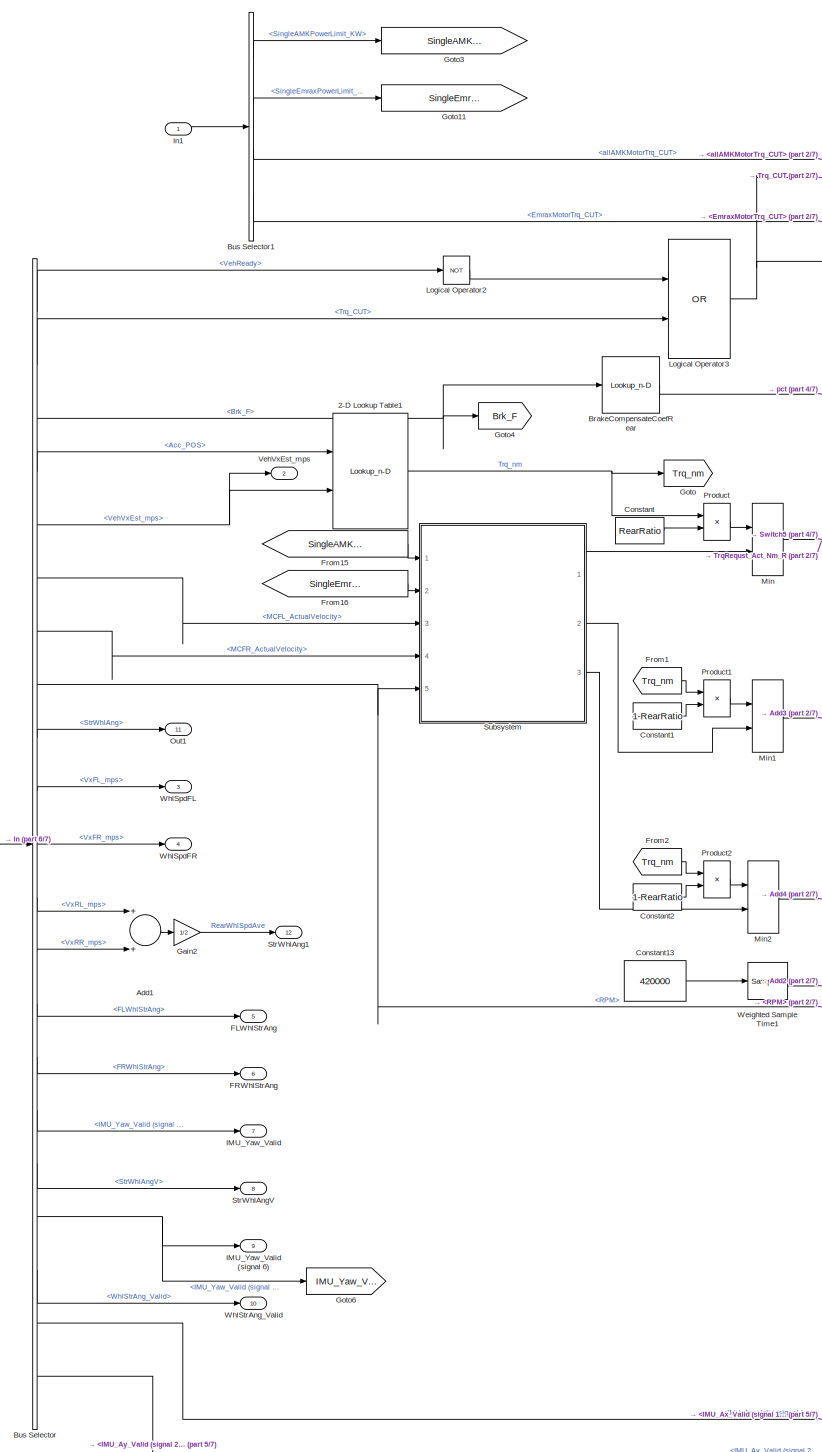
[diagram: root canvas - part 1/7, left side, full height]
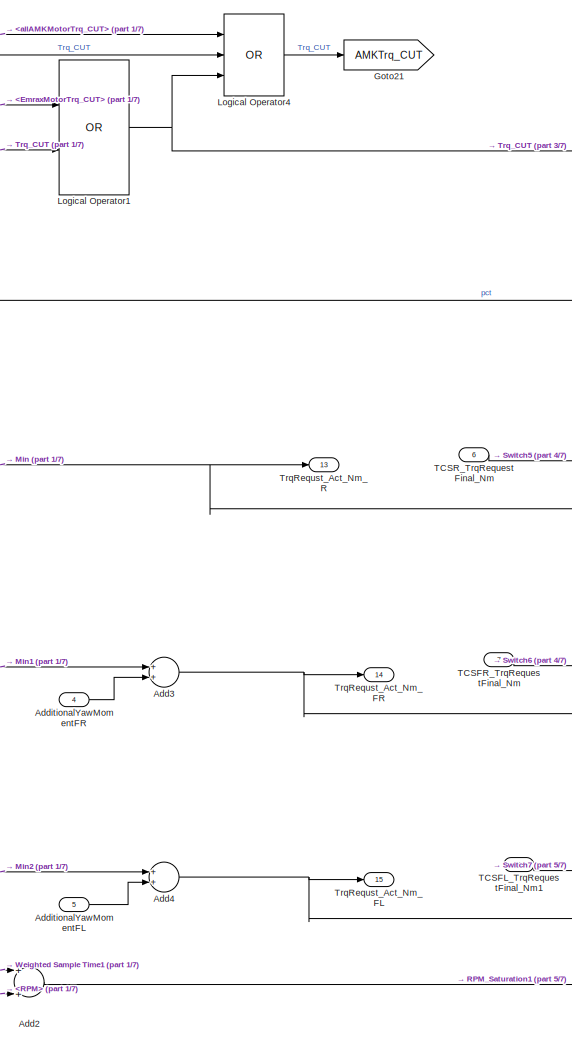
[diagram: root canvas - part 2/7, central region]
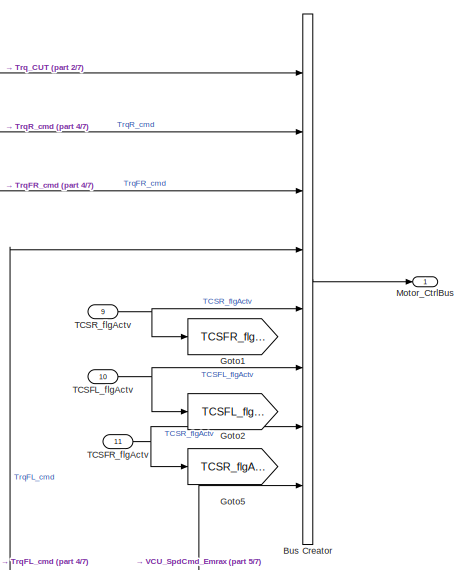
[diagram: root canvas - part 3/7, top right region]
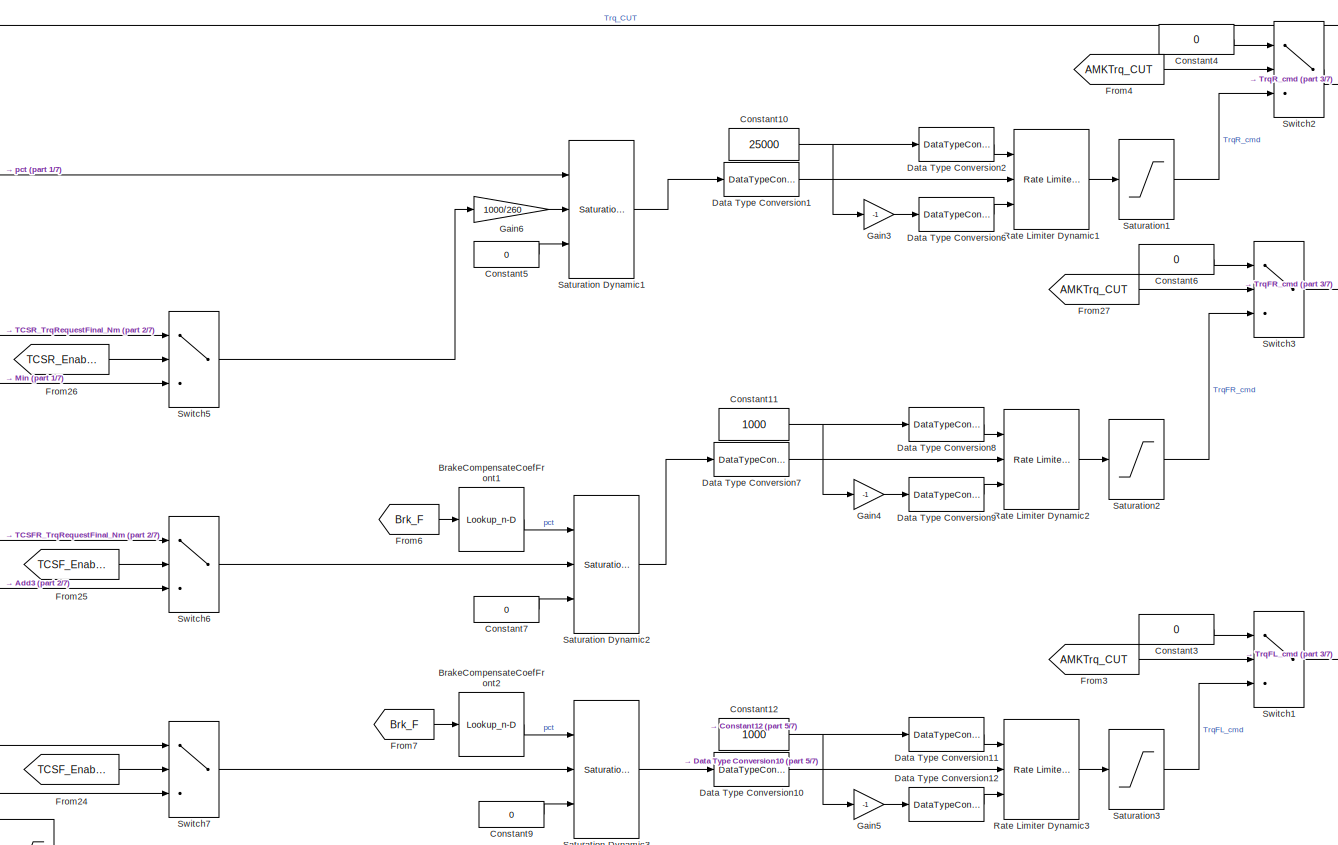
[diagram: root canvas - part 4/7, central region]
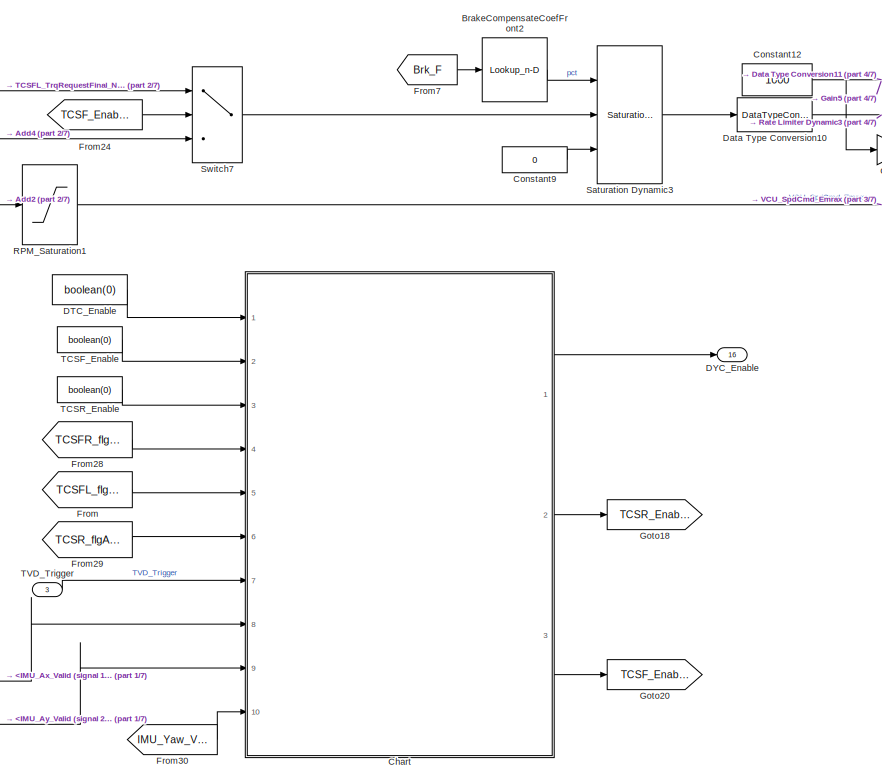
[diagram: root canvas - part 5/7, bottom center region]
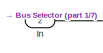
[diagram: root canvas - part 6/7, middle left region]
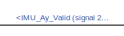
[diagram: root canvas - part 7/7, bottom left region]
MODEL slx_603340a2d964
KIND model
CONFIG AbsTol = auto
CONFIG EnableMultiTasking = off
CONFIG FixedStep = auto
CONFIG MaxStep = auto
CONFIG MinStep = auto
CONFIG RelTol = 1e-3
CONFIG SampleTimeConstraint = Unconstrained
CONFIG Solver = VariableStepAuto
CONFIG SolverName = VariableStepAuto
CONFIG StartTime = 0.0
CONFIG StopTime = 10.0
BLOCK [Lookup_n-D] 2-D Lookup Table1
  BreakpointsForDimension1 = single([0 10 20 30 40 50 60 70 80 90 100])
  BreakpointsForDimension1DataTypeStr = single
  BreakpointsForDimension2 = single([5.40000009536743 10.8000001907349 16.2000007629395 21.6000003814697 27 32.4000015258789 37.7999992370605 43.2000007629395 48.5999984741211 54 59.4000015258789 64.8000030517578 70.1999969482422 75.5999984741211 81 86.4000015258789 91.8000030517578 97.1999969482422 102.599998474121 108])
  BreakpointsForDimension2DataTypeStr = single
  InternalRulePriority = Speed
  Ports = [2, 1]
  RndMeth = Simplest
  Table = single([0 0 0 0 0 0 0 0 0 0 0 0 0 0 0 0 0 0 0 0;20 20 20 20 20 20 20 18 18 18 17 17 16 16 15 15 15 14 14 14;35 35 35 35 35 35 30 30 25 25 25 25 20 20 20 20 20 20 20 18;50 50 50 50 50 50 50 50 50 40 40 40 40 40 40 40 40 40 38 35;79 79 79 79 85 85 85 90 95 100 110 110 110 100 90 90 80 72 70 65;100 100 100 105 105 105 110 110 110 110 115 115 125 125 120 110 90 80 76 70;120 120 120 120 125 125 125 135...<+361ch>
BLOCK [Sum] Add1
  InputSameDT = off
  OutDataTypeStr = Inherit: Inherit via internal rule
  Ports = [2, 1]
  SaturateOnIntegerOverflow = off
BLOCK [Sum] Add2
  InputSameDT = off
  OutDataTypeStr = Inherit: Inherit via internal rule
  Ports = [2, 1]
  SaturateOnIntegerOverflow = off
BLOCK [Sum] Add3
  InputSameDT = off
  OutDataTypeStr = Inherit: Inherit via internal rule
  Ports = [2, 1]
  SaturateOnIntegerOverflow = off
BLOCK [Sum] Add4
  InputSameDT = off
  OutDataTypeStr = Inherit: Inherit via internal rule
  Ports = [2, 1]
  SaturateOnIntegerOverflow = off
BLOCK [Inport] AdditionalYawMomentFL
  IconDisplay = Port number
  Port = 5
BLOCK [Inport] AdditionalYawMomentFR
  IconDisplay = Port number
  Port = 4
BLOCK [Lookup_n-D] BrakeCompensateCoefFront1
  BreakpointsForDimension1 = single([550,2000]);
  ExtrapMethod = Clip
  InternalRulePriority = Speed
  NumberOfTableDimensions = 1
  OutDataTypeStr = single
  Ports = [1, 1]
  RndMeth = Simplest
  Table = single([20,0]);
BLOCK [Lookup_n-D] BrakeCompensateCoefFront2
  BreakpointsForDimension1 = single([550,2000]);
  ExtrapMethod = Clip
  InternalRulePriority = Speed
  NumberOfTableDimensions = 1
  OutDataTypeStr = single
  Ports = [1, 1]
  RndMeth = Simplest
  Table = single([20,0]);
BLOCK [Lookup_n-D] BrakeCompensateCoefRear
  BreakpointsForDimension1 = single([550,2000]);
  ExtrapMethod = Clip
  InternalRulePriority = Speed
  NumberOfTableDimensions = 1
  OutDataTypeStr = single
  Ports = [1, 1]
  RndMeth = Simplest
  Table = single([1000,0]);
BLOCK [BusCreator] Bus Creator
  DisplayOption = bar
  InheritFromInputs = on
  Inputs = 8
  Ports = [8, 1]
BLOCK [BusSelector] Bus Selector
  OutputAsBus = off
  OutputSignals = VehReady,VCUReceive.signal1.AccBrkPedal_Processing.Trq_CUT,VCUReceive.signal1.AccBrkPedal_Processing.Brk_F,VCUReceive.signal1.AccBrkPedal_Processing.Acc_POS,VCUReceive.VehVxEst_mps,VCUReceive.signal1.BUS.AMKMCUtoVCU_BUS.FLAMKMCUtoVCU1.MCFL_ActualVelocity,VCUReceive.signal1.BUS.AMKMCUtoVCU_BUS.FRAMKMCUtoVCU1.MCFR_ActualVelocity,VCUReceive.signal1.BUS.EMRAXMCU_Receive.MCU_state.RPM,VCUReceive.signal...<+568ch>
  Ports = [1, 21]
BLOCK [BusSelector] Bus Selector1
  OutputAsBus = off
  OutputSignals = SingleAMKPowerLimit_KW,SingleEmraxPowerLimit_KW,allAMKMotorTrq_CUT,EmraxMotorTrq_CUT
  Ports = [1, 4]
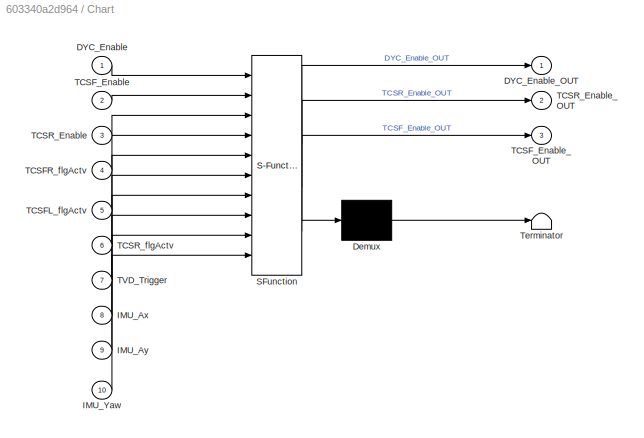
BLOCK [SubSystem] Chart
  ErrorFcn = Stateflow.Translate.translate
  PermitHierarchicalResolution = ExplicitOnly
  Ports = [10, 3]
  RequestExecContextInheritance = off
  SFBlockType = Chart
  TreatAsAtomicUnit = on
BLOCK [Demux] Chart/ Demux 
  Outputs = 1
  Ports = [1, 1]
BLOCK [S-Function] Chart/ SFunction 
  EnableBusSupport = on
  FunctionName = sf_sfun
  PortCounts = [10 4]
  Ports = [10, 4]
  SFcnIsStateOwnerBlock = off
  SFunctionDeploymentMode = off
  Tag = Stateflow S-Function 7
BLOCK [Terminator] Chart/ Terminator 
BLOCK [Inport] Chart/DYC_Enable
  IconDisplay = Port number
BLOCK [Outport] Chart/DYC_Enable_OUT
  IconDisplay = Port number
  VectorParamsAs1DForOutWhenUnconnected = off
BLOCK [Inport] Chart/IMU_Ax
  IconDisplay = Port number
  Port = 8
BLOCK [Inport] Chart/IMU_Ay
  IconDisplay = Port number
  Port = 9
BLOCK [Inport] Chart/IMU_Yaw
  IconDisplay = Port number
  Port = 10
BLOCK [Inport] Chart/TCSFL_flgActv
  IconDisplay = Port number
  Port = 5
BLOCK [Inport] Chart/TCSFR_flgActv
  IconDisplay = Port number
  Port = 4
BLOCK [Inport] Chart/TCSF_Enable
  IconDisplay = Port number
  Port = 2
BLOCK [Outport] Chart/TCSF_Enable_OUT
  IconDisplay = Port number
  Port = 3
  VectorParamsAs1DForOutWhenUnconnected = off
BLOCK [Inport] Chart/TCSR_Enable
  IconDisplay = Port number
  Port = 3
BLOCK [Outport] Chart/TCSR_Enable_OUT
  IconDisplay = Port number
  Port = 2
  VectorParamsAs1DForOutWhenUnconnected = off
BLOCK [Inport] Chart/TCSR_flgActv
  IconDisplay = Port number
  Port = 6
BLOCK [Inport] Chart/TVD_Trigger
  IconDisplay = Port number
  Port = 7
BLOCK [Constant] Constant
  Value = RearRatio
BLOCK [Constant] Constant1
  Value = 1-RearRatio
BLOCK [Constant] Constant10
  OutDataTypeStr = single
  Value = 25000
BLOCK [Constant] Constant11
  OutDataTypeStr = single
  Value = 1000
BLOCK [Constant] Constant12
  OutDataTypeStr = single
  Value = 1000
BLOCK [Constant] Constant13
  OutDataTypeStr = single
  Value = 420000
BLOCK [Constant] Constant2
  Value = 1-RearRatio
BLOCK [Constant] Constant3
  OutDataTypeStr = single
  Value = 0
BLOCK [Constant] Constant4
  OutDataTypeStr = single
  Value = 0
BLOCK [Constant] Constant5
  OutDataTypeStr = single
  Value = 0
BLOCK [Constant] Constant6
  OutDataTypeStr = single
  Value = 0
BLOCK [Constant] Constant7
  OutDataTypeStr = single
  Value = 0
BLOCK [Constant] Constant9
  OutDataTypeStr = single
  Value = 0
BLOCK [Constant] DTC_Enable
  Value = boolean(0)
BLOCK [Outport] DYC_Enable
  IconDisplay = Port number
  Port = 16
BLOCK [DataTypeConversion] Data Type Conversion1
  OutDataTypeStr = single
  RndMeth = Floor
  SaturateOnIntegerOverflow = off
BLOCK [DataTypeConversion] Data Type Conversion10
  OutDataTypeStr = single
  RndMeth = Floor
  SaturateOnIntegerOverflow = off
BLOCK [DataTypeConversion] Data Type Conversion11
  OutDataTypeStr = single
  RndMeth = Floor
  SaturateOnIntegerOverflow = off
BLOCK [DataTypeConversion] Data Type Conversion12
  OutDataTypeStr = single
  RndMeth = Floor
  SaturateOnIntegerOverflow = off
BLOCK [DataTypeConversion] Data Type Conversion2
  OutDataTypeStr = single
  RndMeth = Floor
  SaturateOnIntegerOverflow = off
BLOCK [DataTypeConversion] Data Type Conversion6
  OutDataTypeStr = single
  RndMeth = Floor
  SaturateOnIntegerOverflow = off
BLOCK [DataTypeConversion] Data Type Conversion7
  OutDataTypeStr = single
  RndMeth = Floor
  SaturateOnIntegerOverflow = off
BLOCK [DataTypeConversion] Data Type Conversion8
  OutDataTypeStr = single
  RndMeth = Floor
  SaturateOnIntegerOverflow = off
BLOCK [DataTypeConversion] Data Type Conversion9
  OutDataTypeStr = single
  RndMeth = Floor
  SaturateOnIntegerOverflow = off
BLOCK [Outport] FLWhlStrAng
  IconDisplay = Port number
  Port = 5
BLOCK [Outport] FRWhlStrAng
  IconDisplay = Port number
  Port = 6
BLOCK [From] From
  GotoTag = TCSFL_flgActv
BLOCK [From] From1
  GotoTag = Trq_nm
BLOCK [From] From15
  GotoTag = SingleAMKPowerLimit_KW
BLOCK [From] From16
  GotoTag = SingleEmraxPowerLimit_KW
BLOCK [From] From2
  GotoTag = Trq_nm
BLOCK [From] From24
  GotoTag = TCSF_Enable
BLOCK [From] From25
  GotoTag = TCSF_Enable
BLOCK [From] From26
  GotoTag = TCSR_Enable
BLOCK [From] From27
  GotoTag = AMKTrq_CUT
BLOCK [From] From28
  GotoTag = TCSFR_flgActv
BLOCK [From] From29
  GotoTag = TCSR_flgActv
BLOCK [From] From3
  GotoTag = AMKTrq_CUT
BLOCK [From] From30
  GotoTag = IMU_Yaw_Valid
BLOCK [From] From4
  GotoTag = AMKTrq_CUT
BLOCK [From] From6
  GotoTag = Brk_F
BLOCK [From] From7
  GotoTag = Brk_F
BLOCK [Gain] Gain2
  Gain = 1/2
  OutDataTypeStr = Inherit: Inherit via internal rule
  ParamDataTypeStr = Inherit: Inherit via internal rule
  SaturateOnIntegerOverflow = off
BLOCK [Gain] Gain3
  Gain = -1
  OutDataTypeStr = Inherit: Inherit via internal rule
  ParamDataTypeStr = Inherit: Inherit via internal rule
  SaturateOnIntegerOverflow = off
BLOCK [Gain] Gain4
  Gain = -1
  OutDataTypeStr = Inherit: Inherit via internal rule
  ParamDataTypeStr = Inherit: Inherit via internal rule
  SaturateOnIntegerOverflow = off
BLOCK [Gain] Gain5
  Gain = -1
  OutDataTypeStr = Inherit: Inherit via internal rule
  ParamDataTypeStr = Inherit: Inherit via internal rule
  SaturateOnIntegerOverflow = off
BLOCK [Gain] Gain6
  Gain = 1000/260
  OutDataTypeStr = Inherit: Inherit via internal rule
  ParamDataTypeStr = Inherit: Inherit via internal rule
  SaturateOnIntegerOverflow = off
BLOCK [Goto] Goto
  GotoTag = Trq_nm
BLOCK [Goto] Goto1
  GotoTag = TCSFR_flgActv
BLOCK [Goto] Goto11
  GotoTag = SingleEmraxPowerLimit_KW
BLOCK [Goto] Goto18
  GotoTag = TCSR_Enable
BLOCK [Goto] Goto2
  GotoTag = TCSFL_flgActv
BLOCK [Goto] Goto20
  GotoTag = TCSF_Enable
BLOCK [Goto] Goto21
  GotoTag = AMKTrq_CUT
BLOCK [Goto] Goto3
  GotoTag = SingleAMKPowerLimit_KW
BLOCK [Goto] Goto4
  GotoTag = Brk_F
BLOCK [Goto] Goto5
  GotoTag = TCSR_flgActv
BLOCK [Goto] Goto6
  GotoTag = IMU_Yaw_Valid
BLOCK [Outport] IMU_Yaw_Valid
  IconDisplay = Port number
  Port = 7
BLOCK [Outport] IMU_Yaw_Valid (signal 6)
  IconDisplay = Port number
  Port = 9
BLOCK [Inport] In
  IconDisplay = Port number
  Port = 2
BLOCK [Inport] In1
  IconDisplay = Port number
BLOCK [Logic] Logical Operator1
  AllPortsSameDT = off
  Operator = OR
  OutDataTypeStr = boolean
  Ports = [2, 1]
BLOCK [Logic] Logical Operator2
  AllPortsSameDT = off
  Operator = NOT
  OutDataTypeStr = boolean
  Ports = [1, 1]
BLOCK [Logic] Logical Operator3
  AllPortsSameDT = off
  Operator = OR
  OutDataTypeStr = boolean
  Ports = [2, 1]
BLOCK [Logic] Logical Operator4
  AllPortsSameDT = off
  Inputs = 3
  Operator = OR
  OutDataTypeStr = boolean
  Ports = [3, 1]
BLOCK [MinMax] Min
  InputSameDT = off
  Inputs = 2
  Ports = [2, 1]
  SaturateOnIntegerOverflow = off
BLOCK [MinMax] Min1
  InputSameDT = off
  Inputs = 2
  Ports = [2, 1]
  SaturateOnIntegerOverflow = off
BLOCK [MinMax] Min2
  InputSameDT = off
  Inputs = 2
  Ports = [2, 1]
  SaturateOnIntegerOverflow = off
BLOCK [Outport] Motor_CtrlBus
  IconDisplay = Port number
  VectorParamsAs1DForOutWhenUnconnected = off
BLOCK [Outport] Out1
  IconDisplay = Port number
  Port = 11
BLOCK [Product] Product
  InputSameDT = off
  OutDataTypeStr = Inherit: Inherit via internal rule
  Ports = [2, 1]
  RndMeth = Floor
  SaturateOnIntegerOverflow = off
BLOCK [Product] Product1
  InputSameDT = off
  OutDataTypeStr = Inherit: Inherit via internal rule
  Ports = [2, 1]
  RndMeth = Floor
  SaturateOnIntegerOverflow = off
BLOCK [Product] Product2
  InputSameDT = off
  OutDataTypeStr = Inherit: Inherit via internal rule
  Ports = [2, 1]
  RndMeth = Floor
  SaturateOnIntegerOverflow = off
BLOCK [Saturate] RPM_Saturation1
  InputPortMap = u0
  LowerLimit = -50
  Ports = [1, 1]
  UpperLimit = 5000
BLOCK [Reference] Rate Limiter Dynamic1  REF=simulink/Discontinuities/Rate Limiter
Dynamic
  Ports = [3, 1]
  SourceBlock = simulink/Discontinuities/Rate Limiter\nDynamic
  SourceProductBaseCode = SL
  SourceProductName = Simulink
  SourceType = Rate Limiter Dynamic
BLOCK [Reference] Rate Limiter Dynamic2  REF=simulink/Discontinuities/Rate Limiter
Dynamic
  Ports = [3, 1]
  SourceBlock = simulink/Discontinuities/Rate Limiter\nDynamic
  SourceProductBaseCode = SL
  SourceProductName = Simulink
  SourceType = Rate Limiter Dynamic
BLOCK [Reference] Rate Limiter Dynamic3  REF=simulink/Discontinuities/Rate Limiter
Dynamic
  Ports = [3, 1]
  SourceBlock = simulink/Discontinuities/Rate Limiter\nDynamic
  SourceProductBaseCode = SL
  SourceProductName = Simulink
  SourceType = Rate Limiter Dynamic
BLOCK [Reference] Saturation Dynamic1  REF=simulink/Discontinuities/Saturation
Dynamic
  Ports = [3, 1]
  SourceBlock = simulink/Discontinuities/Saturation\nDynamic
  SourceProductBaseCode = SL
  SourceProductName = Simulink
  SourceType = Saturation Dynamic
BLOCK [Reference] Saturation Dynamic2  REF=simulink/Discontinuities/Saturation
Dynamic
  Ports = [3, 1]
  SourceBlock = simulink/Discontinuities/Saturation\nDynamic
  SourceProductBaseCode = SL
  SourceProductName = Simulink
  SourceType = Saturation Dynamic
BLOCK [Reference] Saturation Dynamic3  REF=simulink/Discontinuities/Saturation
Dynamic
  Ports = [3, 1]
  SourceBlock = simulink/Discontinuities/Saturation\nDynamic
  SourceProductBaseCode = SL
  SourceProductName = Simulink
  SourceType = Saturation Dynamic
BLOCK [Saturate] Saturation1
  InputPortMap = u0
  LowerLimit = 0
  Ports = [1, 1]
  UpperLimit = 1000
BLOCK [Saturate] Saturation2
  InputPortMap = u0
  LowerLimit = 0
  Ports = [1, 1]
  UpperLimit = 20
BLOCK [Saturate] Saturation3
  InputPortMap = u0
  LowerLimit = 0
  Ports = [1, 1]
  UpperLimit = 20
BLOCK [Outport] StrWhlAng1
  IconDisplay = Port number
  Port = 12
BLOCK [Outport] StrWhlAngV
  IconDisplay = Port number
  Port = 8
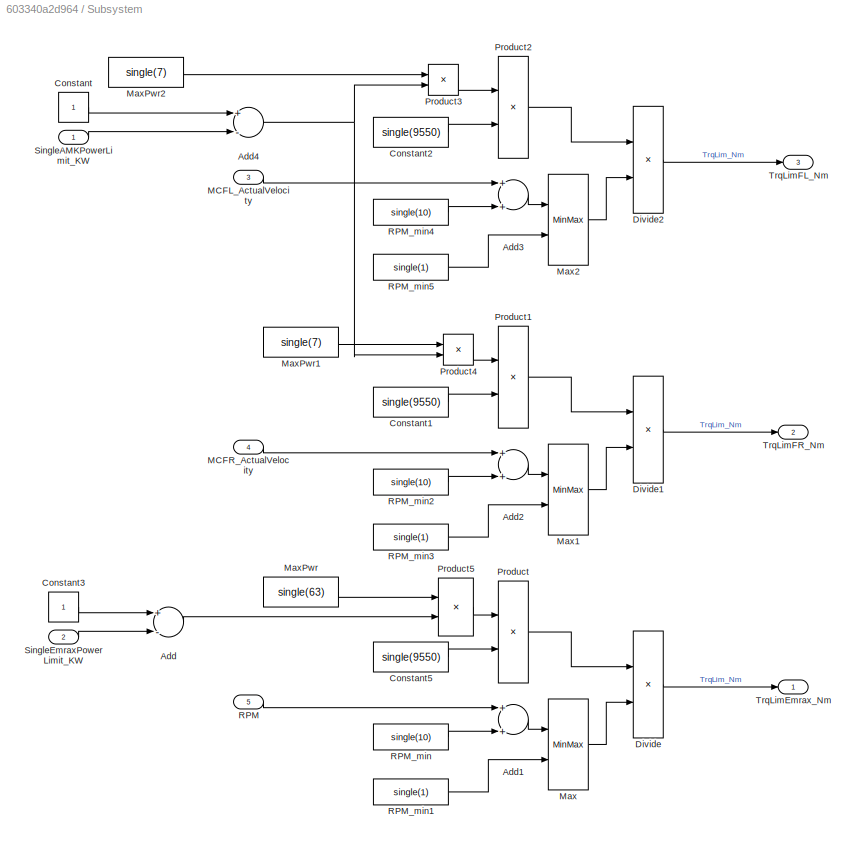
BLOCK [SubSystem] Subsystem
  Ports = [5, 3]
  RequestExecContextInheritance = off
BLOCK [Sum] Subsystem/Add
  InputSameDT = off
  Inputs = +-
  OutDataTypeStr = Inherit: Inherit via internal rule
  Ports = [2, 1]
  SaturateOnIntegerOverflow = off
BLOCK [Sum] Subsystem/Add1
  InputSameDT = off
  OutDataTypeStr = Inherit: Inherit via internal rule
  Ports = [2, 1]
  SaturateOnIntegerOverflow = off
BLOCK [Sum] Subsystem/Add2
  InputSameDT = off
  OutDataTypeStr = Inherit: Inherit via internal rule
  Ports = [2, 1]
  SaturateOnIntegerOverflow = off
BLOCK [Sum] Subsystem/Add3
  InputSameDT = off
  OutDataTypeStr = Inherit: Inherit via internal rule
  Ports = [2, 1]
  SaturateOnIntegerOverflow = off
BLOCK [Sum] Subsystem/Add4
  InputSameDT = off
  Inputs = +-
  OutDataTypeStr = Inherit: Inherit via internal rule
  Ports = [2, 1]
  SaturateOnIntegerOverflow = off
BLOCK [Constant] Subsystem/Constant
BLOCK [Constant] Subsystem/Constant1
  OutDataTypeStr = single
  Value = single(9550)
BLOCK [Constant] Subsystem/Constant2
  OutDataTypeStr = single
  Value = single(9550)
BLOCK [Constant] Subsystem/Constant3
BLOCK [Constant] Subsystem/Constant5
  OutDataTypeStr = single
  Value = single(9550)
BLOCK [Product] Subsystem/Divide
  InputSameDT = off
  Inputs = */
  OutDataTypeStr = Inherit: Inherit via internal rule
  Ports = [2, 1]
  RndMeth = Floor
  SaturateOnIntegerOverflow = off
BLOCK [Product] Subsystem/Divide1
  InputSameDT = off
  Inputs = */
  OutDataTypeStr = Inherit: Inherit via internal rule
  Ports = [2, 1]
  RndMeth = Floor
  SaturateOnIntegerOverflow = off
BLOCK [Product] Subsystem/Divide2
  InputSameDT = off
  Inputs = */
  OutDataTypeStr = Inherit: Inherit via internal rule
  Ports = [2, 1]
  RndMeth = Floor
  SaturateOnIntegerOverflow = off
BLOCK [Inport] Subsystem/MCFL_ActualVelocity
  IconDisplay = Port number
  Port = 3
BLOCK [Inport] Subsystem/MCFR_ActualVelocity
  IconDisplay = Port number
  Port = 4
BLOCK [MinMax] Subsystem/Max
  Function = max
  InputSameDT = off
  Inputs = 2
  Ports = [2, 1]
  SaturateOnIntegerOverflow = off
BLOCK [MinMax] Subsystem/Max1
  Function = max
  InputSameDT = off
  Inputs = 2
  Ports = [2, 1]
  SaturateOnIntegerOverflow = off
BLOCK [MinMax] Subsystem/Max2
  Function = max
  InputSameDT = off
  Inputs = 2
  Ports = [2, 1]
  SaturateOnIntegerOverflow = off
BLOCK [Constant] Subsystem/MaxPwr
  OutDataTypeStr = single
  Value = single(63)
BLOCK [Constant] Subsystem/MaxPwr1
  OutDataTypeStr = single
  Value = single(7)
BLOCK [Constant] Subsystem/MaxPwr2
  OutDataTypeStr = single
  Value = single(7)
BLOCK [Product] Subsystem/Product
  InputSameDT = off
  OutDataTypeStr = Inherit: Inherit via internal rule
  Ports = [2, 1]
  RndMeth = Floor
  SaturateOnIntegerOverflow = off
BLOCK [Product] Subsystem/Product1
  InputSameDT = off
  OutDataTypeStr = Inherit: Inherit via internal rule
  Ports = [2, 1]
  RndMeth = Floor
  SaturateOnIntegerOverflow = off
BLOCK [Product] Subsystem/Product2
  InputSameDT = off
  OutDataTypeStr = Inherit: Inherit via internal rule
  Ports = [2, 1]
  RndMeth = Floor
  SaturateOnIntegerOverflow = off
BLOCK [Product] Subsystem/Product3
  InputSameDT = off
  OutDataTypeStr = Inherit: Inherit via internal rule
  Ports = [2, 1]
  RndMeth = Floor
  SaturateOnIntegerOverflow = off
BLOCK [Product] Subsystem/Product4
  InputSameDT = off
  OutDataTypeStr = Inherit: Inherit via internal rule
  Ports = [2, 1]
  RndMeth = Floor
  SaturateOnIntegerOverflow = off
BLOCK [Product] Subsystem/Product5
  InputSameDT = off
  OutDataTypeStr = Inherit: Inherit via internal rule
  Ports = [2, 1]
  RndMeth = Floor
  SaturateOnIntegerOverflow = off
BLOCK [Inport] Subsystem/RPM
  IconDisplay = Port number
  Port = 5
BLOCK [Constant] Subsystem/RPM_min
  OutDataTypeStr = single
  Value = single(10)
BLOCK [Constant] Subsystem/RPM_min1
  OutDataTypeStr = single
  Value = single(1)
BLOCK [Constant] Subsystem/RPM_min2
  OutDataTypeStr = single
  Value = single(10)
BLOCK [Constant] Subsystem/RPM_min3
  OutDataTypeStr = single
  Value = single(1)
BLOCK [Constant] Subsystem/RPM_min4
  OutDataTypeStr = single
  Value = single(10)
BLOCK [Constant] Subsystem/RPM_min5
  OutDataTypeStr = single
  Value = single(1)
BLOCK [Inport] Subsystem/SingleAMKPowerLimit_KW
  IconDisplay = Port number
BLOCK [Inport] Subsystem/SingleEmraxPowerLimit_KW
  IconDisplay = Port number
  Port = 2
BLOCK [Outport] Subsystem/TrqLimEmrax_Nm
  IconDisplay = Port number
BLOCK [Outport] Subsystem/TrqLimFL_Nm
  IconDisplay = Port number
  Port = 3
BLOCK [Outport] Subsystem/TrqLimFR_Nm
  IconDisplay = Port number
  Port = 2
BLOCK [Switch] Switch1
  Criteria = u2 ~= 0
  InputSameDT = off
  SaturateOnIntegerOverflow = off
BLOCK [Switch] Switch2
  Criteria = u2 ~= 0
  InputSameDT = off
  SaturateOnIntegerOverflow = off
BLOCK [Switch] Switch3
  Criteria = u2 ~= 0
  InputSameDT = off
  SaturateOnIntegerOverflow = off
BLOCK [Switch] Switch5
  Criteria = u2 ~= 0
  InputSameDT = off
  SaturateOnIntegerOverflow = off
BLOCK [Switch] Switch6
  Criteria = u2 ~= 0
  InputSameDT = off
  SaturateOnIntegerOverflow = off
BLOCK [Switch] Switch7
  Criteria = u2 ~= 0
  InputSameDT = off
  SaturateOnIntegerOverflow = off
BLOCK [Inport] TCSFL_TrqRequestFinal_Nm1
  IconDisplay = Port number
  Port = 8
BLOCK [Inport] TCSFL_flgActv
  IconDisplay = Port number
  Port = 10
BLOCK [Inport] TCSFR_TrqRequestFinal_Nm
  IconDisplay = Port number
  Port = 7
BLOCK [Inport] TCSFR_flgActv
  IconDisplay = Port number
  Port = 11
BLOCK [Constant] TCSF_Enable
  OutDataTypeStr = boolean
  Value = boolean(0)
BLOCK [Constant] TCSR_Enable
  OutDataTypeStr = boolean
  Value = boolean(0)
BLOCK [Inport] TCSR_TrqRequestFinal_Nm
  IconDisplay = Port number
  Port = 6
BLOCK [Inport] TCSR_flgActv
  IconDisplay = Port number
  Port = 9
BLOCK [Inport] TVD_Trigger
  IconDisplay = Port number
  Port = 3
BLOCK [Outport] TrqRequst_Act_Nm_FL
  IconDisplay = Port number
  Port = 15
BLOCK [Outport] TrqRequst_Act_Nm_FR
  IconDisplay = Port number
  Port = 14
BLOCK [Outport] TrqRequst_Act_Nm_R
  IconDisplay = Port number
  Port = 13
BLOCK [Outport] VehVxEst_mps
  IconDisplay = Port number
  Port = 2
BLOCK [SampleTimeMath] Weighted Sample Time1
  TsampMathOp = *
BLOCK [Outport] WhlSpdFL
  IconDisplay = Port number
  Port = 3
BLOCK [Outport] WhlSpdFR
  IconDisplay = Port number
  Port = 4
BLOCK [Outport] WhlStrAng_Valid
  IconDisplay = Port number
  Port = 10
NET 2-D Lookup Table1:1 -> Goto:1, Product:1
LINE Add1:1 -> Gain2:1
LINE Add2:1 -> RPM_Saturation1:1
NET Add3:1 -> Switch6:3, TrqRequst_Act_Nm_FR:1
NET Add4:1 -> Switch7:3, TrqRequst_Act_Nm_FL:1
LINE AdditionalYawMomentFL:1 -> Add4:2
LINE AdditionalYawMomentFR:1 -> Add3:2
LINE BrakeCompensateCoefFront1:1 -> Saturation Dynamic2:1
LINE BrakeCompensateCoefFront2:1 -> Saturation Dynamic3:1
LINE BrakeCompensateCoefRear:1 -> Saturation Dynamic1:1
LINE Bus Creator:1 -> Motor_CtrlBus:1
LINE Bus Selector1:1 -> Goto3:1
LINE Bus Selector1:2 -> Goto11:1
LINE Bus Selector1:3 -> Logical Operator4:1
LINE Bus Selector1:4 -> Logical Operator1:1
LINE Bus Selector:1 -> Logical Operator2:1
LINE Bus Selector:10 -> WhlSpdFL:1
LINE Bus Selector:11 -> WhlSpdFR:1
LINE Bus Selector:12 -> Add1:1
LINE Bus Selector:13 -> Add1:2
LINE Bus Selector:14 -> FLWhlStrAng:1
LINE Bus Selector:15 -> FRWhlStrAng:1
LINE Bus Selector:16 -> IMU_Yaw_Valid:1
LINE Bus Selector:17 -> StrWhlAngV:1
NET Bus Selector:18 -> Goto6:1, IMU_Yaw_Valid (signal 6):1
LINE Bus Selector:19 -> WhlStrAng_Valid:1
LINE Bus Selector:2 -> Logical Operator3:2
LINE Bus Selector:20 -> Chart:8
LINE Bus Selector:21 -> Chart:9
NET Bus Selector:3 -> BrakeCompensateCoefRear:1, Goto4:1
LINE Bus Selector:4 -> 2-D Lookup Table1:1
NET Bus Selector:5 -> 2-D Lookup Table1:2, VehVxEst_mps:1
LINE Bus Selector:6 -> Subsystem:3
LINE Bus Selector:7 -> Subsystem:4
NET Bus Selector:8 -> Add2:2, Subsystem:5
LINE Bus Selector:9 -> Out1:1
LINE Chart:1 -> DYC_Enable:1
LINE Chart:2 -> Goto18:1
LINE Chart:3 -> Goto20:1
NET Constant10:1 -> Data Type Conversion2:1, Gain3:1
NET Constant11:1 -> Data Type Conversion8:1, Gain4:1
NET Constant12:1 -> Data Type Conversion11:1, Gain5:1
LINE Constant13:1 -> Weighted Sample Time1:1
LINE Constant1:1 -> Product1:2
LINE Constant2:1 -> Product2:2
LINE Constant3:1 -> Switch1:1
LINE Constant4:1 -> Switch2:1
LINE Constant5:1 -> Saturation Dynamic1:3
LINE Constant6:1 -> Switch3:1
LINE Constant7:1 -> Saturation Dynamic2:3
LINE Constant9:1 -> Saturation Dynamic3:3
LINE Constant:1 -> Product:2
LINE DTC_Enable:1 -> Chart:1
LINE Data Type Conversion10:1 -> Rate Limiter Dynamic3:2
LINE Data Type Conversion11:1 -> Rate Limiter Dynamic3:1
LINE Data Type Conversion12:1 -> Rate Limiter Dynamic3:3
LINE Data Type Conversion1:1 -> Rate Limiter Dynamic1:2
LINE Data Type Conversion2:1 -> Rate Limiter Dynamic1:1
LINE Data Type Conversion6:1 -> Rate Limiter Dynamic1:3
LINE Data Type Conversion7:1 -> Rate Limiter Dynamic2:2
LINE Data Type Conversion8:1 -> Rate Limiter Dynamic2:1
LINE Data Type Conversion9:1 -> Rate Limiter Dynamic2:3
LINE From15:1 -> Subsystem:1
LINE From16:1 -> Subsystem:2
LINE From1:1 -> Product1:1
LINE From24:1 -> Switch7:2
LINE From25:1 -> Switch6:2
LINE From26:1 -> Switch5:2
LINE From27:1 -> Switch3:2
LINE From28:1 -> Chart:4
LINE From29:1 -> Chart:6
LINE From2:1 -> Product2:1
LINE From30:1 -> Chart:10
LINE From3:1 -> Switch1:2
LINE From4:1 -> Switch2:2
LINE From6:1 -> BrakeCompensateCoefFront1:1
LINE From7:1 -> BrakeCompensateCoefFront2:1
LINE From:1 -> Chart:5
LINE Gain2:1 -> StrWhlAng1:1
LINE Gain3:1 -> Data Type Conversion6:1
LINE Gain4:1 -> Data Type Conversion9:1
LINE Gain5:1 -> Data Type Conversion12:1
LINE Gain6:1 -> Saturation Dynamic1:2
LINE In1:1 -> Bus Selector1:1
LINE In:1 -> Bus Selector:1
NET Logical Operator1:1 -> Bus Creator:1, Logical Operator4:3
LINE Logical Operator2:1 -> Logical Operator3:1
NET Logical Operator3:1 -> Logical Operator1:2, Logical Operator4:2
LINE Logical Operator4:1 -> Goto21:1
LINE Min1:1 -> Add3:1
LINE Min2:1 -> Add4:1
NET Min:1 -> Switch5:3, TrqRequst_Act_Nm_R:1
LINE Product1:1 -> Min1:1
LINE Product2:1 -> Min2:1
LINE Product:1 -> Min:1
LINE RPM_Saturation1:1 -> Bus Creator:8
LINE Rate Limiter Dynamic1:1 -> Saturation1:1
LINE Rate Limiter Dynamic2:1 -> Saturation2:1
LINE Rate Limiter Dynamic3:1 -> Saturation3:1
LINE Saturation Dynamic1:1 -> Data Type Conversion1:1
LINE Saturation Dynamic2:1 -> Data Type Conversion7:1
LINE Saturation Dynamic3:1 -> Data Type Conversion10:1
LINE Saturation1:1 -> Switch2:3
LINE Saturation2:1 -> Switch3:3
LINE Saturation3:1 -> Switch1:3
LINE Subsystem/Add1:1 -> Subsystem/Max:1
LINE Subsystem/Add2:1 -> Subsystem/Max1:1
LINE Subsystem/Add3:1 -> Subsystem/Max2:1
NET Subsystem/Add4:1 -> Subsystem/Product3:2, Subsystem/Product4:2
LINE Subsystem/Add:1 -> Subsystem/Product5:2
LINE Subsystem/Constant1:1 -> Subsystem/Product1:2
LINE Subsystem/Constant2:1 -> Subsystem/Product2:2
LINE Subsystem/Constant3:1 -> Subsystem/Add:1
LINE Subsystem/Constant5:1 -> Subsystem/Product:2
LINE Subsystem/Constant:1 -> Subsystem/Add4:1
LINE Subsystem/Divide1:1 -> Subsystem/TrqLimFR_Nm:1
LINE Subsystem/Divide2:1 -> Subsystem/TrqLimFL_Nm:1
LINE Subsystem/Divide:1 -> Subsystem/TrqLimEmrax_Nm:1
LINE Subsystem/MCFL_ActualVelocity:1 -> Subsystem/Add3:1
LINE Subsystem/MCFR_ActualVelocity:1 -> Subsystem/Add2:1
LINE Subsystem/Max1:1 -> Subsystem/Divide1:2
LINE Subsystem/Max2:1 -> Subsystem/Divide2:2
LINE Subsystem/Max:1 -> Subsystem/Divide:2
LINE Subsystem/MaxPwr1:1 -> Subsystem/Product4:1
LINE Subsystem/MaxPwr2:1 -> Subsystem/Product3:1
LINE Subsystem/MaxPwr:1 -> Subsystem/Product5:1
LINE Subsystem/Product1:1 -> Subsystem/Divide1:1
LINE Subsystem/Product2:1 -> Subsystem/Divide2:1
LINE Subsystem/Product3:1 -> Subsystem/Product2:1
LINE Subsystem/Product4:1 -> Subsystem/Product1:1
LINE Subsystem/Product5:1 -> Subsystem/Product:1
LINE Subsystem/Product:1 -> Subsystem/Divide:1
LINE Subsystem/RPM:1 -> Subsystem/Add1:1
LINE Subsystem/RPM_min1:1 -> Subsystem/Max:2
LINE Subsystem/RPM_min2:1 -> Subsystem/Add2:2
LINE Subsystem/RPM_min3:1 -> Subsystem/Max1:2
LINE Subsystem/RPM_min4:1 -> Subsystem/Add3:2
LINE Subsystem/RPM_min5:1 -> Subsystem/Max2:2
LINE Subsystem/RPM_min:1 -> Subsystem/Add1:2
LINE Subsystem/SingleAMKPowerLimit_KW:1 -> Subsystem/Add4:2
LINE Subsystem/SingleEmraxPowerLimit_KW:1 -> Subsystem/Add:2
LINE Subsystem:1 -> Min:2
LINE Subsystem:2 -> Min1:2
LINE Subsystem:3 -> Min2:2
LINE Switch1:1 -> Bus Creator:4
LINE Switch2:1 -> Bus Creator:2
LINE Switch3:1 -> Bus Creator:3
LINE Switch5:1 -> Gain6:1
LINE Switch6:1 -> Saturation Dynamic2:2
LINE Switch7:1 -> Saturation Dynamic3:2
LINE TCSFL_TrqRequestFinal_Nm1:1 -> Switch7:1
NET TCSFL_flgActv:1 -> Bus Creator:6, Goto2:1
LINE TCSFR_TrqRequestFinal_Nm:1 -> Switch6:1
NET TCSFR_flgActv:1 -> Bus Creator:7, Goto5:1
LINE TCSF_Enable:1 -> Chart:2
LINE TCSR_Enable:1 -> Chart:3
LINE TCSR_TrqRequestFinal_Nm:1 -> Switch5:1
NET TCSR_flgActv:1 -> Bus Creator:5, Goto1:1
LINE TVD_Trigger:1 -> Chart:7
LINE Weighted Sample Time1:1 -> Add2:1
note: NET lines group one-source signal fan-out (src -> all destinations, sorted); 1:1 wires keep LINE
CHART Chart states=11 transitions=20
  STATE_LABEL 'A\nen:\nif abs(IMU_Ay)>0.5\n    a=atan(IMU_Ax/IMU_Ay)*180/pi;\nelse\n    a = 0;\nend\nb=sqrt(power(IMU_Ax,2)+power(IMU_Ay,2));'
  STATE_LABEL 'InitState\n'
  STATE_LABEL 'DYC_Disenable\nen:\nDYC_Enable_OUT=0;\nDYC_flag=0;'
  STATE_LABEL 'TCSR_Disenable\nen:\nTCSR_Enable_OUT=0;'
  STATE_LABEL 'TCSR_Enable\nen:\nTCSR_Enable_OUT=1;'
  STATE_LABEL 'TCSF_Disenable\nen:\nTCSF_Enable_OUT=0;\n'
  STATE_LABEL 'TCSF_Enable\nen:\nTCSF_Enable_OUT=1;\n'
  STATE_LABEL 'DYC_Enable\nen:\nDYC_Enable_OUT=1;\nDYC_flag=1;'
  STATE_LABEL 'B\nen:\nTCSR_Enable_OUT=1;'
  STATE_LABEL 'F_TVD_TCS_STATE'
  STATE_LABEL 'C\nen:\nTCSR_Enable_OUT=0;'
